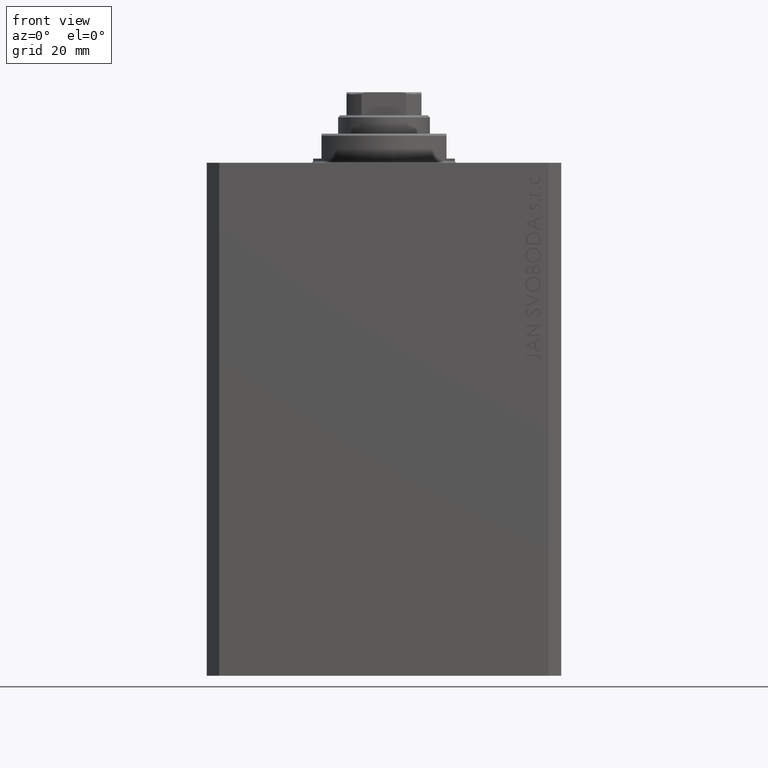
[diagram: clean part render]
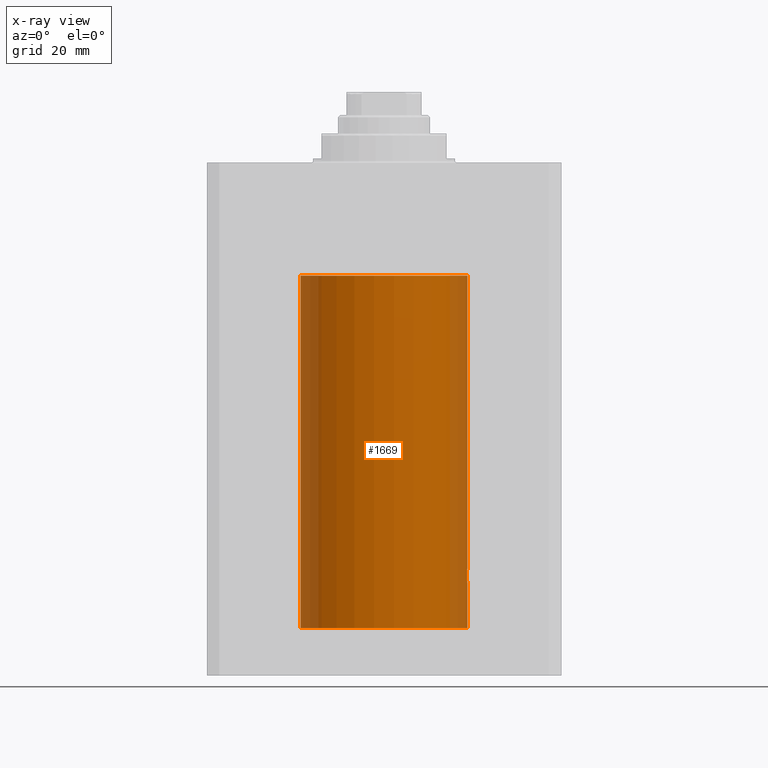
[diagram: x-ray — body ghosted, one internal face saturated and labeled with its STEP entity id]
A machine part, front view, then the same camera in x-ray: the body is ghosted and one INTERNAL B-rep face — a face not visible from any outside direction — is saturated and labeled: STEP entity #1669.
In plain terms, the highlighted cylindrical surface (partial cylindrical patch) has radius 20 mm, axis along (0, 0, 1).
Its self-contained STEP definition (entity closure, byte-faithful):
#505 = CARTESIAN_POINT ( 'NONE',  ( 19.90981966846453588, -1.897793276286218411, -99.64463361322839319 ) ) ;
#1352 = CARTESIAN_POINT ( 'NONE',  ( 0.000000000000000000, 0.000000000000000000, -27.10000000000000142 ) ) ;
#1669 = ADVANCED_FACE ( 'NONE', ( #35515 ), #4788, .F. ) ;
#2249 = CARTESIAN_POINT ( 'NONE',  ( 19.94343050116685845, -1.506032346525473020, -97.67754857126976731 ) ) ;
#2292 = EDGE_CURVE ( 'NONE', #12558, #7031, #9545, .T. ) ;
#2428 = VECTOR ( 'NONE', #10210, 1000.000000000000000 ) ;
#2792 = EDGE_CURVE ( 'NONE', #13163, #39344, #12372, .T. ) ;
#2817 = B_SPLINE_CURVE_WITH_KNOTS ( 'NONE', 3,
 ( #19300, #39259, #28940, #32967, #15499, #2249, #22219, #39714, #35897, #25148, #8999, #39481, #22670, #42625 ),
 .UNSPECIFIED., .F., .F.,
 ( 4, 2, 2, 2, 2, 2, 4 ),
 ( 0.006256819553330524898, 0.007039116231737640138, 0.007821412910144754510, 0.008212561249348312997, 0.008603709588551871484, 0.008994857927755429972, 0.009386006266958986724 ),
 .UNSPECIFIED. ) ;
#2947 = AXIS2_PLACEMENT_3D ( 'NONE', #1352, #38801, #14168 ) ;
#3879 = VECTOR ( 'NONE', #11488, 1000.000000000000000 ) ;
#4788 = CYLINDRICAL_SURFACE ( 'NONE', #21043, 20.00000000000000000 ) ;
#5084 = CIRCLE ( 'NONE', #2947, 20.00000000000000000 ) ;
#7031 = VERTEX_POINT ( 'NONE', #18684 ) ;
#7526 = EDGE_CURVE ( 'NONE', #15542, #19984, #21725, .T. ) ;
#7588 = ORIENTED_EDGE ( 'NONE', *, *, #2292, .F. ) ;
#8073 = EDGE_CURVE ( 'NONE', #37723, #39344, #25650, .T. ) ;
#8118 = CARTESIAN_POINT ( 'NONE',  ( 19.92464121718639802, -1.736076547215872790, -100.0015422135783894 ) ) ;
#8389 = DIRECTION ( 'NONE',  ( -0.000000000000000000, -0.000000000000000000, 1.000000000000000000 ) ) ;
#8999 = CARTESIAN_POINT ( 'NONE',  ( 19.90607912840593485, -1.936147476084615127, -98.48198538155280346 ) ) ;
#9545 = LINE ( 'NONE', #26800, #2428 ) ;
#10210 = DIRECTION ( 'NONE',  ( -0.000000000000000000, -0.000000000000000000, 1.000000000000000000 ) ) ;
#10223 = AXIS2_PLACEMENT_3D ( 'NONE', #21603, #11292, #41340 ) ;
#10847 = CARTESIAN_POINT ( 'NONE',  ( -20.00000000000000000, 2.449293598294706513E-15, -111.6000000000000085 ) ) ;
#11292 = DIRECTION ( 'NONE',  ( 0.000000000000000000, 0.000000000000000000, 1.000000000000000000 ) ) ;
#11488 = DIRECTION ( 'NONE',  ( -0.000000000000000000, -0.000000000000000000, 1.000000000000000000 ) ) ;
#12372 = LINE ( 'NONE', #42192, #3879 ) ;
#12558 = VERTEX_POINT ( 'NONE', #23405 ) ;
#13163 = VERTEX_POINT ( 'NONE', #14308 ) ;
#14168 = DIRECTION ( 'NONE',  ( 1.000000000000000000, 0.000000000000000000, 0.000000000000000000 ) ) ;
#14190 = CARTESIAN_POINT ( 'NONE',  ( 19.97604812261521090, -1.007662572237620457, -100.7471082404733096 ) ) ;
#14308 = CARTESIAN_POINT ( 'NONE',  ( 20.00000000000000000, 0.000000000000000000, -111.6000000000000085 ) ) ;
#14321 = ORIENTED_EDGE ( 'NONE', *, *, #7526, .T. ) ;
#14513 = CIRCLE ( 'NONE', #10223, 20.00000000000000000 ) ;
#14621 = CARTESIAN_POINT ( 'NONE',  ( 20.00000000000000000, 0.000000000000000000, -101.0000000000000000 ) ) ;
#15062 = CARTESIAN_POINT ( 'NONE',  ( 19.91912874598169125, -1.797456133345314511, -99.88674870370387282 ) ) ;
#15111 = CARTESIAN_POINT ( 'NONE',  ( 0.000000000000000000, 0.000000000000000000, -111.6000000000000085 ) ) ;
#15499 = CARTESIAN_POINT ( 'NONE',  ( 19.96304361591165133, -1.229269670911803614, -97.40095624928315488 ) ) ;
#15542 = VERTEX_POINT ( 'NONE', #10847 ) ;
#16625 = ORIENTED_EDGE ( 'NONE', *, *, #8073, .T. ) ;
#17987 = CARTESIAN_POINT ( 'NONE',  ( 19.96296989966237945, -1.230425635331405365, -100.5981187666770893 ) ) ;
#18684 = CARTESIAN_POINT ( 'NONE',  ( 20.00000000000000000, 0.000000000000000000, -27.10000000000000142 ) ) ;
#19300 = CARTESIAN_POINT ( 'NONE',  ( 20.00000000000000000, -1.553109350199128042E-23, -97.00000000000000000 ) ) ;
#19984 = VERTEX_POINT ( 'NONE', #30572 ) ;
#21043 = AXIS2_PLACEMENT_3D ( 'NONE', #15111, #8389, #22055 ) ;
#21352 = CARTESIAN_POINT ( 'NONE',  ( 19.89974874213243439, -1.999999999999655609, -99.00000000000000000 ) ) ;
#21603 = CARTESIAN_POINT ( 'NONE',  ( 0.000000000000000000, 0.000000000000000000, -111.6000000000000085 ) ) ;
#21725 = LINE ( 'NONE', #24874, #26184 ) ;
#22055 = DIRECTION ( 'NONE',  ( 1.000000000000000000, 0.000000000000000000, 0.000000000000000000 ) ) ;
#22219 = CARTESIAN_POINT ( 'NONE',  ( 19.93679035661676835, -1.590502522866548585, -97.78041502771402804 ) ) ;
#22670 = CARTESIAN_POINT ( 'NONE',  ( 19.89974874213243439, -1.999999999999655609, -98.86779873849403089 ) ) ;
#23405 = CARTESIAN_POINT ( 'NONE',  ( 20.00000000000000000, -1.553109350199128042E-23, -97.00000000000000000 ) ) ;
#24277 = EDGE_CURVE ( 'NONE', #19984, #7031, #5084, .T. ) ;
#24711 = CARTESIAN_POINT ( 'NONE',  ( 19.93674030556024590, -1.591123942389839119, -100.2187588700503227 ) ) ;
#24874 = CARTESIAN_POINT ( 'NONE',  ( -20.00000000000000000, 2.449293598294706513E-15, -111.6000000000000085 ) ) ;
#25148 = CARTESIAN_POINT ( 'NONE',  ( 19.90983652367462042, -1.897617924364799924, -98.35484020333801425 ) ) ;
#25650 = B_SPLINE_CURVE_WITH_KNOTS ( 'NONE', 3,
 ( #21352, #27851, #28286, #39047, #505, #15062, #8118, #24711, #32087, #17987, #14190, #31642, #28509, #14621 ),
 .UNSPECIFIED., .F., .F.,
 ( 4, 2, 2, 2, 2, 2, 4 ),
 ( 0.009386006266958986724, 0.009776776943204319378, 0.01016754761944965377, 0.01055831829569498642, 0.01094908897194031908, 0.01173063032443095663, 0.01251217167692159418 ),
 .UNSPECIFIED. ) ;
#26184 = VECTOR ( 'NONE', #38757, 1000.000000000000000 ) ;
#26800 = CARTESIAN_POINT ( 'NONE',  ( 20.00000000000000000, 0.000000000000000000, -111.6000000000000085 ) ) ;
#27365 = ORIENTED_EDGE ( 'NONE', *, *, #42035, .T. ) ;
#27851 = CARTESIAN_POINT ( 'NONE',  ( 19.89974874213243083, -1.999999999999655165, -99.13207361806611573 ) ) ;
#28286 = CARTESIAN_POINT ( 'NONE',  ( 19.90106527362734568, -1.987020983172499422, -99.26214585379852906 ) ) ;
#28509 = CARTESIAN_POINT ( 'NONE',  ( 19.99999999999999645, -0.2642773949967771041, -100.9999999999999289 ) ) ;
#28574 = CARTESIAN_POINT ( 'NONE',  ( 20.00000000000000000, 0.000000000000000000, -101.0000000000000000 ) ) ;
#28940 = CARTESIAN_POINT ( 'NONE',  ( 19.99457156948952985, -0.5245703965536948621, -97.05250028761906833 ) ) ;
#29471 = EDGE_LOOP ( 'NONE', ( #33039, #14321, #36484, #7588, #27365, #16625, #39844 ) ) ;
#30572 = CARTESIAN_POINT ( 'NONE',  ( -20.00000000000000000, 2.449293598294706513E-15, -27.10000000000000142 ) ) ;
#31642 = CARTESIAN_POINT ( 'NONE',  ( 19.99450726301181192, -0.5268413099739941430, -100.9468459871092705 ) ) ;
#32087 = CARTESIAN_POINT ( 'NONE',  ( 19.94337316053471909, -1.506783194222099720, -100.3215850766146531 ) ) ;
#32967 = CARTESIAN_POINT ( 'NONE',  ( 19.97612863609106171, -1.006156579624605252, -97.25197878504231142 ) ) ;
#33039 = ORIENTED_EDGE ( 'NONE', *, *, #35010, .F. ) ;
#35010 = EDGE_CURVE ( 'NONE', #15542, #13163, #14513, .T. ) ;
#35515 = FACE_OUTER_BOUND ( 'NONE', #29471, .T. ) ;
#35897 = CARTESIAN_POINT ( 'NONE',  ( 19.91915476385079842, -1.797169352086260830, -98.11266282055724730 ) ) ;
#36484 = ORIENTED_EDGE ( 'NONE', *, *, #24277, .T. ) ;
#37723 = VERTEX_POINT ( 'NONE', #38174 ) ;
#38174 = CARTESIAN_POINT ( 'NONE',  ( 19.89974874213243439, -1.999999999999655609, -99.00000000000000000 ) ) ;
#38757 = DIRECTION ( 'NONE',  ( -0.000000000000000000, -0.000000000000000000, 1.000000000000000000 ) ) ;
#38801 = DIRECTION ( 'NONE',  ( 0.000000000000000000, 0.000000000000000000, 1.000000000000000000 ) ) ;
#39047 = CARTESIAN_POINT ( 'NONE',  ( 19.90607187811043843, -1.936221525612430661, -99.51770555336665325 ) ) ;
#39259 = CARTESIAN_POINT ( 'NONE',  ( 20.00000000000000000, -0.2612062508298597097, -97.00000000000005684 ) ) ;
#39344 = VERTEX_POINT ( 'NONE', #28574 ) ;
#39481 = CARTESIAN_POINT ( 'NONE',  ( 19.90106531167246828, -1.987021080928412342, -98.73779127013027335 ) ) ;
#39714 = CARTESIAN_POINT ( 'NONE',  ( 19.92467362751852988, -1.735709893904968437, -97.99780393930582534 ) ) ;
#39844 = ORIENTED_EDGE ( 'NONE', *, *, #2792, .F. ) ;
#41340 = DIRECTION ( 'NONE',  ( 1.000000000000000000, 0.000000000000000000, 0.000000000000000000 ) ) ;
#42035 = EDGE_CURVE ( 'NONE', #12558, #37723, #2817, .T. ) ;
#42192 = CARTESIAN_POINT ( 'NONE',  ( 20.00000000000000000, 0.000000000000000000, -111.6000000000000085 ) ) ;
#42625 = CARTESIAN_POINT ( 'NONE',  ( 19.89974874213243439, -1.999999999999655609, -99.00000000000000000 ) ) ;